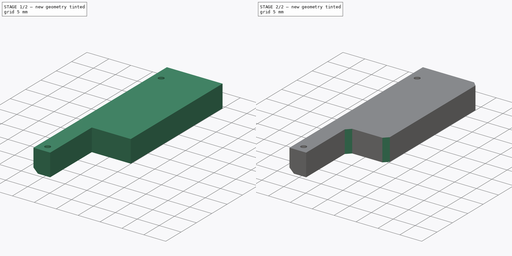
[diagram: build sequence overview — one tinted view per stage of 2, left to right]
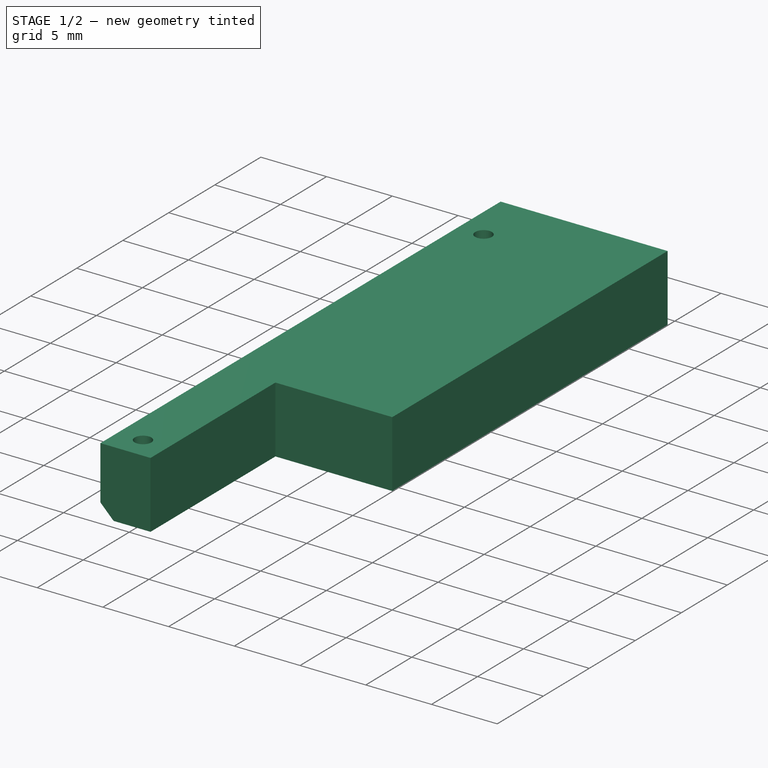
[diagram: stage 1 of 2 — iso view after this stage's code; geometry added in this stage tinted green]
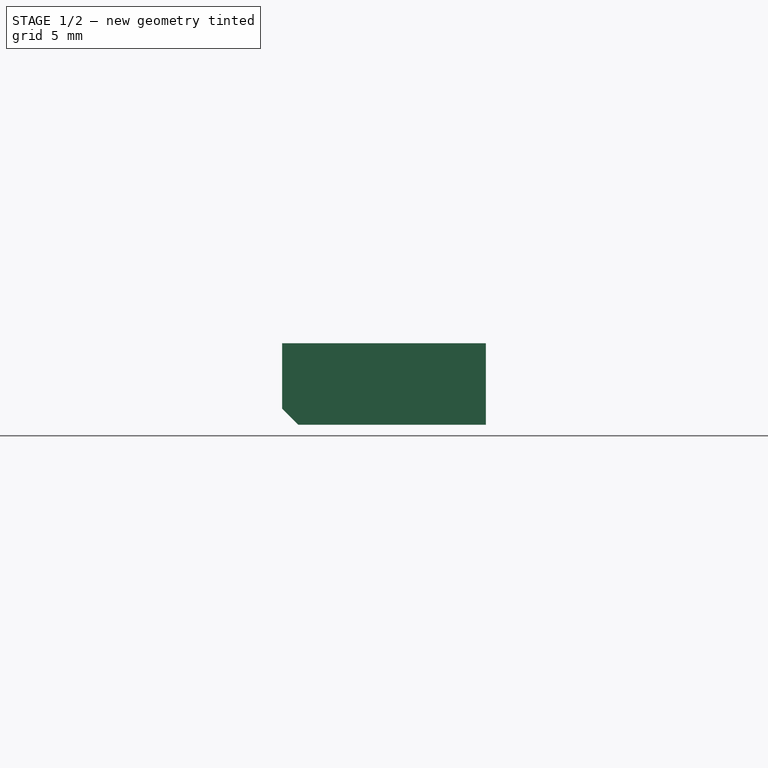
[diagram: stage 1 of 2 — front view after this stage's code; geometry added in this stage tinted green]
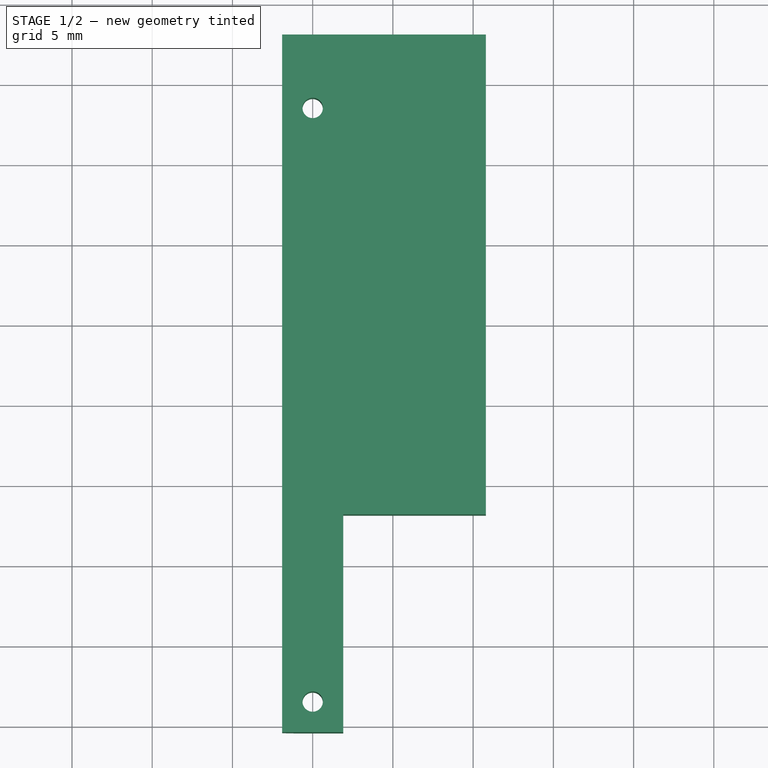
[diagram: stage 1 of 2 — top view after this stage's code; geometry added in this stage tinted green]
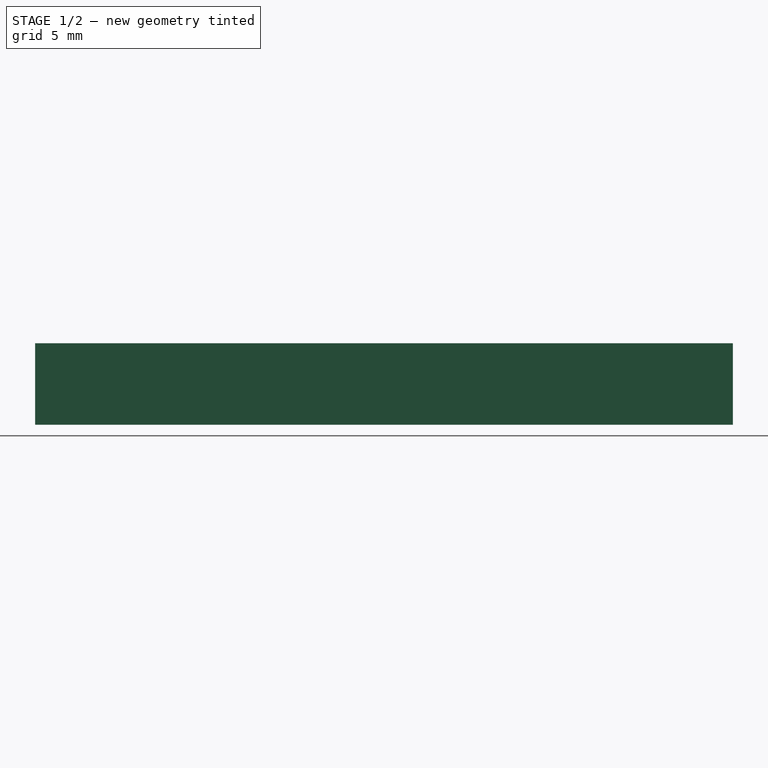
[diagram: stage 1 of 2 — right view after this stage's code; geometry added in this stage tinted green]
FCSTD DOCUMENT  (FreeCAD 0.22R36526 (Git))
Label: breadboard mount
License: All rights reserved
LicenseURL: http://en.wikipedia.org/wiki/All_rights_reserved
objects: PartDesign::Chamfer×2, Sketcher::SketchObject×1, PartDesign::Pad×1, PartDesign::Body×1
note: 8 computed .brp shape members not serialized (recipe doc carries the construction recipe); baked Part::Feature solids carry a one-line shape summary decoded from their .brp

FEATURE [Sketcher::SketchObject] Sketch
  AttachmentSupport = -> [XY_Plane]
  FullyConstrained = false
  MapMode = 5
  sketch-geometry (15):
    g0: Circle CenterX=0 CenterY=18.5 CenterZ=0 NormalX=0 NormalY=0 NormalZ=1 AngleXU=0 Radius=0.635
    g1: Circle CenterX=0 CenterY=-18.5 CenterZ=0 NormalX=0 NormalY=0 NormalZ=1 AngleXU=0 Radius=0.635
    g2: LineSegment StartX=-17.2085 StartY=-23.0759 StartZ=0 EndX=17.2085 EndY=-23.0759 EndZ=0
    g3: LineSegment StartX=17.2085 StartY=-23.0759 StartZ=0 EndX=17.2085 EndY=23.0759 EndZ=0
    g4: LineSegment StartX=17.2085 StartY=23.0759 StartZ=0 EndX=-17.2085 EndY=23.0759 EndZ=0
    g5: LineSegment StartX=-17.2085 StartY=23.0759 StartZ=0 EndX=-17.2085 EndY=-23.0759 EndZ=0
    g6: GeomPoint X=0 Y=0 Z=0
    g7: LineSegment StartX=-1.905 StartY=23.0759 StartZ=0 EndX=-1.905 EndY=-20.405 EndZ=0
    g8: LineSegment StartX=1.905 StartY=-20.405 StartZ=0 EndX=1.905 EndY=-6.83304 EndZ=0
    g9: LineSegment StartX=1.905 StartY=-6.83304 StartZ=0 EndX=10.795 EndY=-6.83304 EndZ=0
    g10: LineSegment StartX=10.795 StartY=-6.83304 StartZ=0 EndX=10.795 EndY=23.0759 EndZ=0
    g11: LineSegment StartX=10.795 StartY=23.0759 StartZ=0 EndX=-1.905 EndY=23.0759 EndZ=0
    g12: Circle CenterX=0 CenterY=18.5 CenterZ=0 NormalX=0 NormalY=0 NormalZ=1 AngleXU=0 Radius=1.905
    g13: Circle CenterX=0 CenterY=-18.5 CenterZ=0 NormalX=0 NormalY=0 NormalZ=1 AngleXU=0 Radius=1.905
    g14: LineSegment StartX=-1.905 StartY=-20.405 StartZ=0 EndX=1.905 EndY=-20.405 EndZ=0
  constraints (38):
    c: PointOnObject(g0,g-2)
    c: Equal(g1,g0)
    c: Symmetric(g0,g1,g-1)
    c: DistanceY(g1,g0) = 37
    c: Diameter(g1) = 1.27
    c: Coincident(g2,g3)
    c: Coincident(g3,g4)
    c: Coincident(g4,g5)
    c: Coincident(g5,g2)
    c: Horizontal(g2)
    c: Horizontal(g4)
    c: Vertical(g3)
    c: Vertical(g5)
    c: Symmetric(g4,g2,g6)
    c: Distance(g3,g5) = 34.417
    c: Distance(g2,g4) = 46.1518
    c: Coincident(g6,g-1)
    c: PointOnObject(g7,g4)
    c: Vertical(g7)
    c: Vertical(g8)
    c: Coincident(g8,g9)
    c: Horizontal(g9)
    c: Coincident(g9,g10)
    c: Vertical(g10)
    c: Coincident(g10,g11)
    c: Coincident(g11,g7)
    c: Horizontal(g11)
    c: Distance(g7,g10) = 12.7
    c: Coincident(g12,g0)
    c: Tangent(g12,g7)
    c: Diameter(g12) = 3.81
    c: Coincident(g13,g1)
    c: Tangent(g13,g7)
    c: Coincident(g14,g7)
    c: Coincident(g14,g8)
    c: Horizontal(g14)
    c: Tangent(g14,g13)
    c: Tangent(g13,g8)
FEATURE [PartDesign::Pad] Pad
  Direction = (0,0,1)
  Length = 5.08
  Length2 = 10
  Profile = -> Sketch
  ReferenceAxis = -> Sketch [N_Axis]
  Suppressed = false
  Type = 0
FEATURE [PartDesign::Chamfer] Chamfer
  Angle = 45
  Base = -> Pad [Edge3]
  BaseFeature = -> Pad
  ChamferType = 0
  FlipDirection = false
  Size = 1
  Size2 = 1
  SupportTransform = false
  Suppressed = false
  UseAllEdges = false
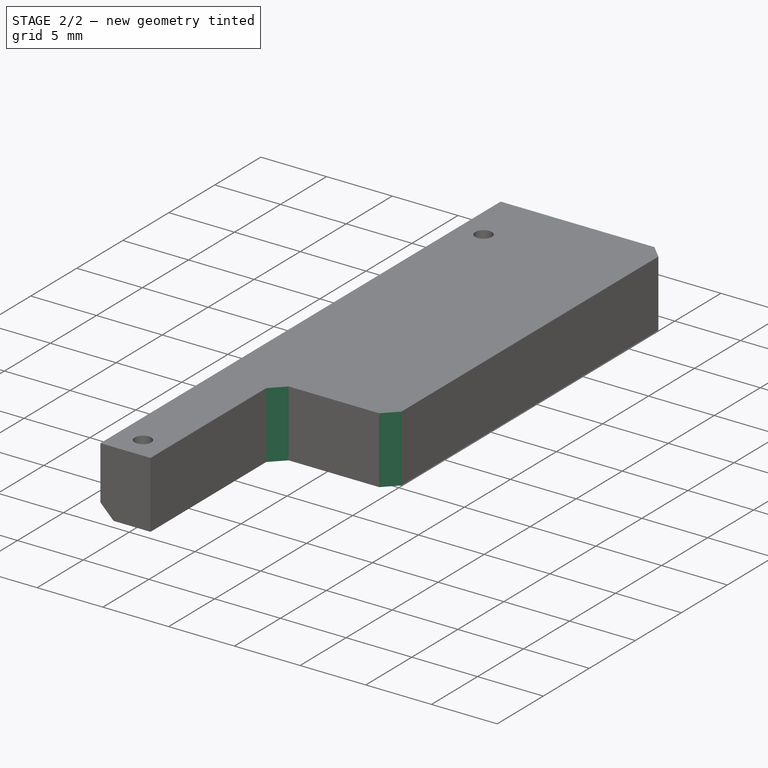
[diagram: stage 2 of 2 — iso view after this stage's code; geometry added in this stage tinted green]
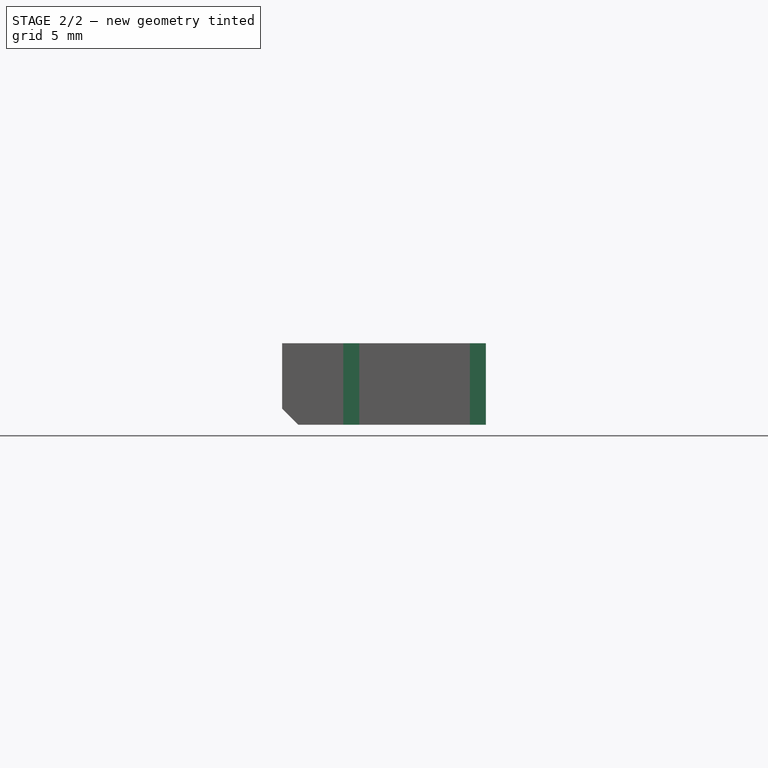
[diagram: stage 2 of 2 — front view after this stage's code; geometry added in this stage tinted green]
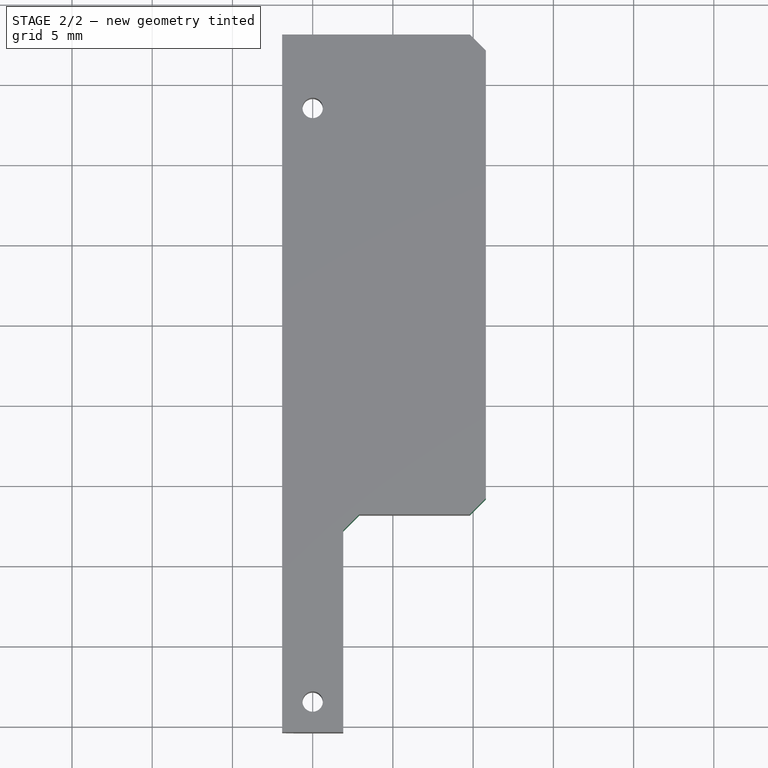
[diagram: stage 2 of 2 — top view after this stage's code; geometry added in this stage tinted green]
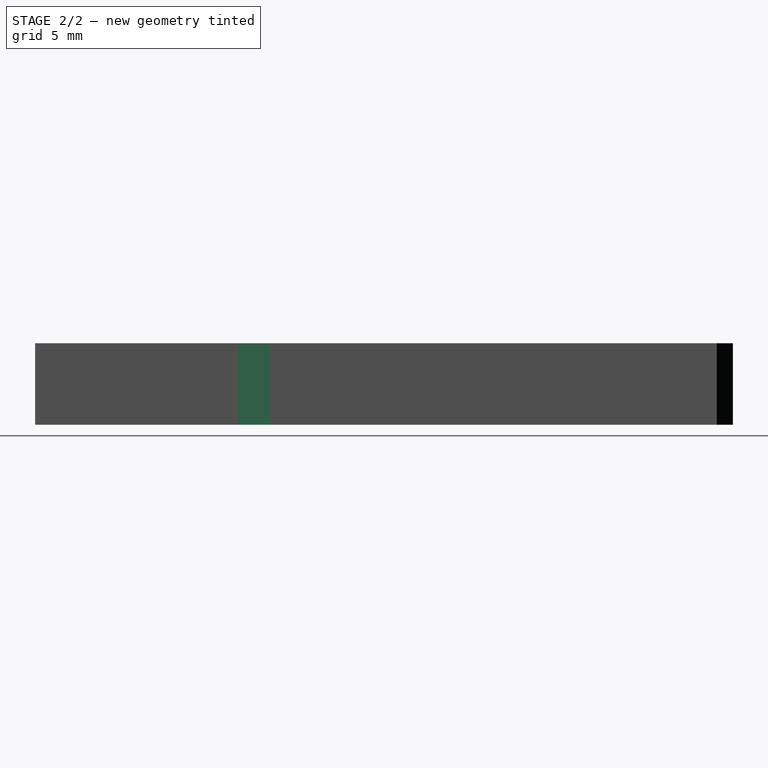
[diagram: stage 2 of 2 — right view after this stage's code; geometry added in this stage tinted green]
FEATURE [PartDesign::Chamfer] Chamfer001
  Angle = 45
  Base = -> Chamfer [Edge25,Edge24,Edge8]
  BaseFeature = -> Chamfer
  ChamferType = 0
  FlipDirection = false
  Size = 1
  Size2 = 1
  SupportTransform = false
  Suppressed = false
  UseAllEdges = false
FEATURE [PartDesign::Body] Body
  Group = -> [Sketch,Pad,Chamfer,Chamfer001]
  Origin = -> Origin
  Tip = -> Chamfer001
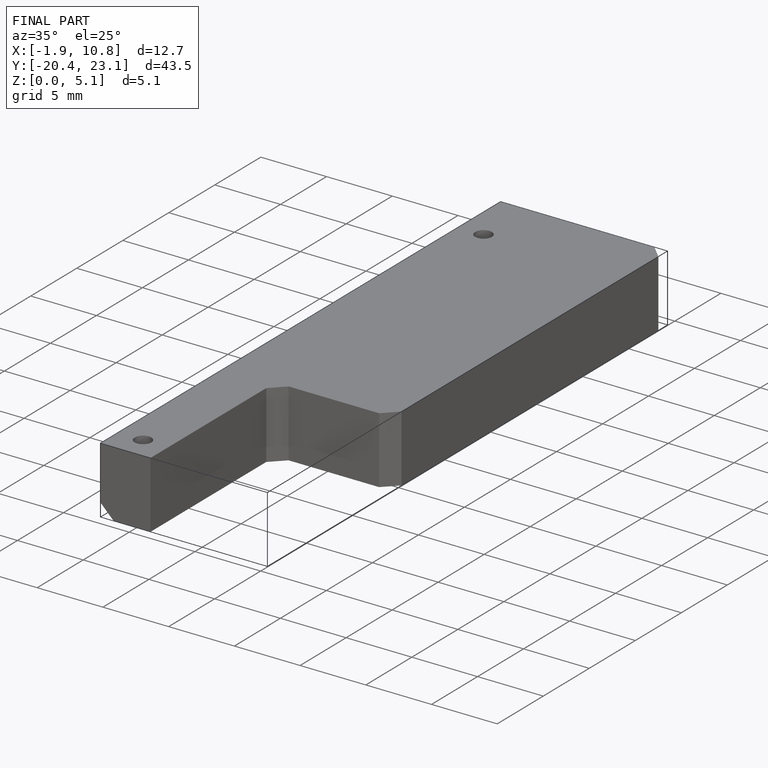
[diagram: finished part — iso view with bounding-box wireframe]
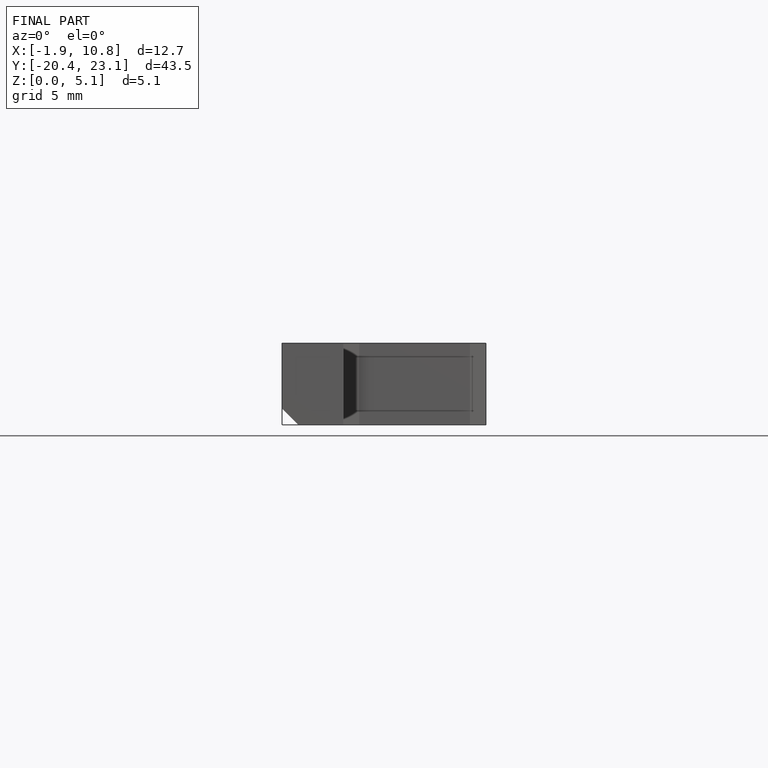
[diagram: finished part — front view with bounding-box wireframe]
